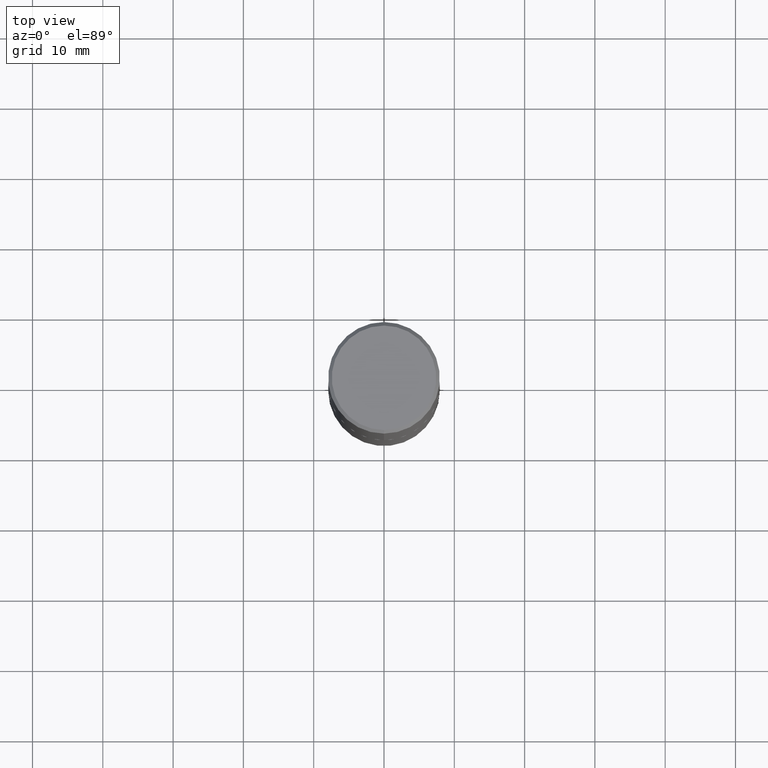
[diagram: clean part render]
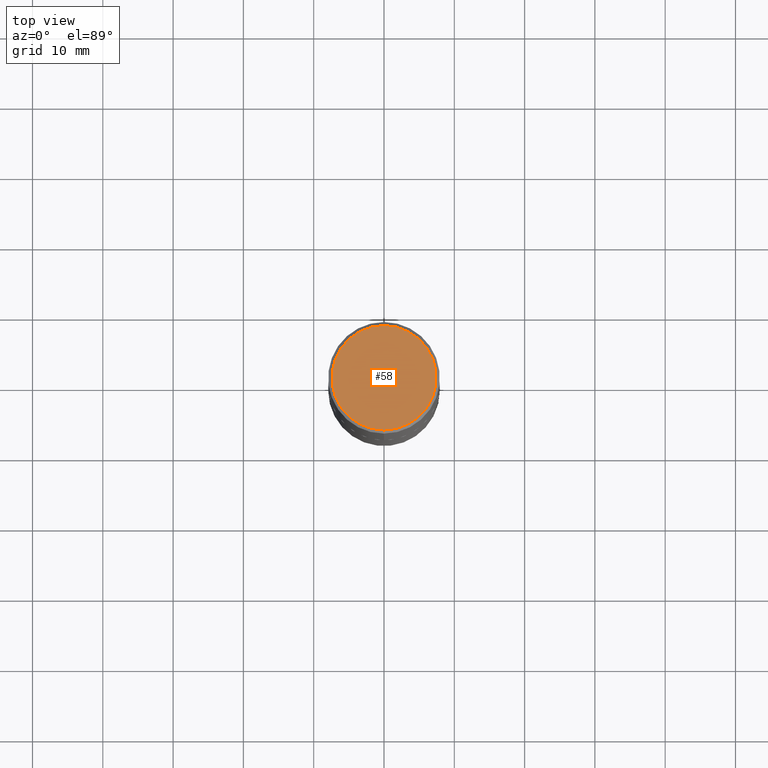
[diagram: same view with one face highlighted and labeled with its STEP entity id]
A machine part, top view. The second image highlights one B-rep face of the part: STEP entity #58.
In plain terms, the highlighted planar face has unit normal (0, -0, -1).
Its self-contained STEP definition (entity closure, byte-faithful):
#2 = CIRCLE ( 'NONE', #360, 0.2924999999999999822 ) ;
#3 = DIRECTION ( 'NONE',  ( -6.982962677686265133E-15, -1.000000000000000000, 3.492364022149836753E-15 ) ) ;
#25 = VERTEX_POINT ( 'NONE', #235 ) ;
#58 = ADVANCED_FACE ( 'NONE', ( #262 ), #389, .F. ) ;
#61 = EDGE_LOOP ( 'NONE', ( #327, #190 ) ) ;
#70 = DIRECTION ( 'NONE',  ( 2.444852431726452333E-29, -3.492364022149836358E-15, -1.000000000000000000 ) ) ;
#101 = AXIS2_PLACEMENT_3D ( 'NONE', #357, #70, #343 ) ;
#104 = EDGE_CURVE ( 'NONE', #316, #25, #2, .T. ) ;
#129 = DIRECTION ( 'NONE',  ( -2.444852431726452894E-29, 3.492364022149836358E-15, 1.000000000000000000 ) ) ;
#178 = DIRECTION ( 'NONE',  ( -2.444852431726452894E-29, 3.492364022149836358E-15, 1.000000000000000000 ) ) ;
#186 = DIRECTION ( 'NONE',  ( -6.982962677686265133E-15, -1.000000000000000000, 3.492364022149836753E-15 ) ) ;
#190 = ORIENTED_EDGE ( 'NONE', *, *, #299, .T. ) ;
#235 = CARTESIAN_POINT ( 'NONE',  ( -2.075300644325887493E-15, -0.2924999999999999822, 1.030311686326234990E-15 ) ) ;
#261 = CIRCLE ( 'NONE', #278, 0.2924999999999999822 ) ;
#262 = FACE_OUTER_BOUND ( 'NONE', #61, .T. ) ;
#273 = CARTESIAN_POINT ( 'NONE',  ( -2.150299018297948745E-46, 3.071607443834507134E-32, 8.795209847407834549E-18 ) ) ;
#278 = AXIS2_PLACEMENT_3D ( 'NONE', #417, #129, #3 ) ;
#299 = EDGE_CURVE ( 'NONE', #25, #316, #261, .T. ) ;
#316 = VERTEX_POINT ( 'NONE', #416 ) ;
#327 = ORIENTED_EDGE ( 'NONE', *, *, #104, .T. ) ;
#343 = DIRECTION ( 'NONE',  ( 6.982962677686265922E-15, 1.000000000000000000, -3.492364022149836358E-15 ) ) ;
#357 = CARTESIAN_POINT ( 'NONE',  ( 2.042516583223232540E-15, 0.2924999999999999822, -1.017118871555123169E-15 ) ) ;
#360 = AXIS2_PLACEMENT_3D ( 'NONE', #273, #178, #186 ) ;
#389 = PLANE ( 'NONE',  #101 ) ;
#416 = CARTESIAN_POINT ( 'NONE',  ( 2.112346210000095838E-15, 0.2924999999999999822, -1.012721266631419361E-15 ) ) ;
#417 = CARTESIAN_POINT ( 'NONE',  ( -2.150299018297948745E-46, 3.071607443834507134E-32, 8.795209847407834549E-18 ) ) ;